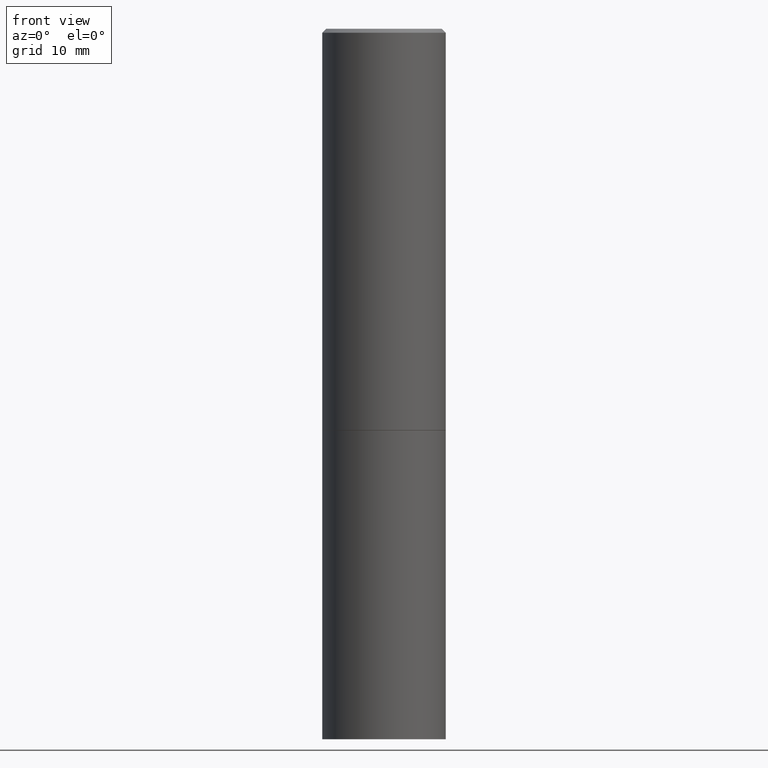
[diagram: clean part render]
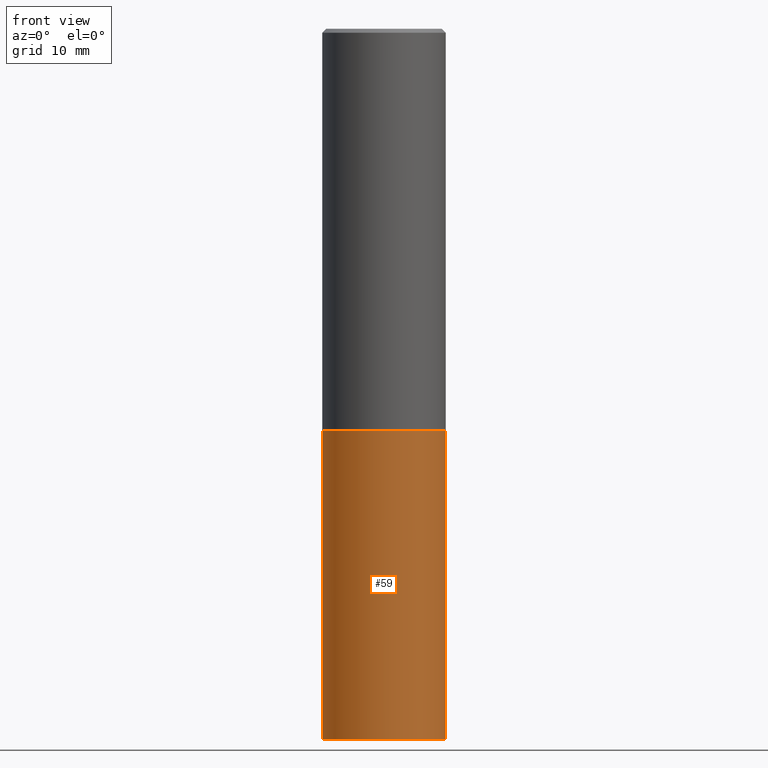
[diagram: same view with one face highlighted and labeled with its STEP entity id]
A machine part, front view. The second image highlights one B-rep face of the part: STEP entity #59.
In plain terms, the highlighted cylindrical surface (partial cylindrical patch) has radius 7.9997 mm, axis along (-0, 0, 1).
Its self-contained STEP definition (entity closure, byte-faithful):
#5 = EDGE_CURVE ( 'NONE', #115, #107, #53, .T. ) ;
#11 = CARTESIAN_POINT ( 'NONE',  ( 0.3149500000000000077, -9.347044692216978073E-15, -2.047199999999999687 ) ) ;
#23 = DIRECTION ( 'NONE',  ( 1.000000000000000000, -6.982962677686266711E-15, 4.876176775795936353E-29 ) ) ;
#50 = CARTESIAN_POINT ( 'NONE',  ( -0.3149500000000000077, 2.237854346276435590E-15, -1.549218606675782676E-29 ) ) ;
#53 = LINE ( 'NONE', #50, #130 ) ;
#59 = ADVANCED_FACE ( 'NONE', ( #279 ), #216, .T. ) ;
#71 = DIRECTION ( 'NONE',  ( -2.445468806185136877E-29, 3.491481338843145188E-15, 1.000000000000000000 ) ) ;
#72 = DIRECTION ( 'NONE',  ( 1.000000000000000000, -6.982962677686269866E-15, 0.000000000000000000 ) ) ;
#107 = VERTEX_POINT ( 'NONE', #142 ) ;
#114 = DIRECTION ( 'NONE',  ( -2.445468806185136877E-29, 3.491481338843145188E-15, 1.000000000000000000 ) ) ;
#115 = VERTEX_POINT ( 'NONE', #334 ) ;
#123 = DIRECTION ( 'NONE',  ( -2.445468806185136597E-29, 3.491481338843145583E-15, 1.000000000000000000 ) ) ;
#130 = VECTOR ( 'NONE', #114, 39.37007874015748143 ) ;
#142 = CARTESIAN_POINT ( 'NONE',  ( -0.3149500000000000077, -7.659098656808343322E-15, -2.047199999999999687 ) ) ;
#145 = ORIENTED_EDGE ( 'NONE', *, *, #312, .F. ) ;
#151 = CARTESIAN_POINT ( 'NONE',  ( 5.006363740022211120E-29, -7.147760596879686624E-15, -2.047199999999999687 ) ) ;
#159 = CIRCLE ( 'NONE', #250, 0.3149500000000000077 ) ;
#178 = CARTESIAN_POINT ( 'NONE',  ( 8.857488016002564476E-29, -1.264614540928987199E-14, -3.621999999999999886 ) ) ;
#180 = EDGE_CURVE ( 'NONE', #115, #247, #207, .T. ) ;
#207 = CIRCLE ( 'NONE', #256, 0.3149500000000000077 ) ;
#210 = LINE ( 'NONE', #266, #249 ) ;
#211 = CARTESIAN_POINT ( 'NONE',  ( 0.3149500000000000077, -1.484542950462716186E-14, -3.621999999999999886 ) ) ;
#213 = VERTEX_POINT ( 'NONE', #11 ) ;
#216 = CYLINDRICAL_SURFACE ( 'NONE', #362, 0.3149500000000000077 ) ;
#230 = EDGE_CURVE ( 'NONE', #247, #213, #210, .T. ) ;
#231 = DIRECTION ( 'NONE',  ( 1.000000000000000000, -6.982962677686263555E-15, 0.000000000000000000 ) ) ;
#247 = VERTEX_POINT ( 'NONE', #211 ) ;
#249 = VECTOR ( 'NONE', #71, 39.37007874015748143 ) ;
#250 = AXIS2_PLACEMENT_3D ( 'NONE', #151, #123, #72 ) ;
#256 = AXIS2_PLACEMENT_3D ( 'NONE', #178, #287, #231 ) ;
#266 = CARTESIAN_POINT ( 'NONE',  ( 0.3149500000000000077, -2.199284095337289871E-15, 1.535751875536930130E-29 ) ) ;
#276 = DIRECTION ( 'NONE',  ( -2.445468806185136597E-29, 3.491481338843145583E-15, 1.000000000000000000 ) ) ;
#279 = FACE_OUTER_BOUND ( 'NONE', #342, .T. ) ;
#280 = ORIENTED_EDGE ( 'NONE', *, *, #230, .T. ) ;
#287 = DIRECTION ( 'NONE',  ( -2.445468806185136597E-29, 3.491481338843145583E-15, 1.000000000000000000 ) ) ;
#303 = CARTESIAN_POINT ( 'NONE',  ( 0.000000000000000000, 0.000000000000000000, 0.000000000000000000 ) ) ;
#309 = ORIENTED_EDGE ( 'NONE', *, *, #5, .F. ) ;
#312 = EDGE_CURVE ( 'NONE', #107, #213, #159, .T. ) ;
#334 = CARTESIAN_POINT ( 'NONE',  ( -0.3149500000000000077, -7.659098656808343322E-15, -3.621999999999999886 ) ) ;
#342 = EDGE_LOOP ( 'NONE', ( #309, #365, #280, #145 ) ) ;
#362 = AXIS2_PLACEMENT_3D ( 'NONE', #303, #276, #23 ) ;
#365 = ORIENTED_EDGE ( 'NONE', *, *, #180, .T. ) ;